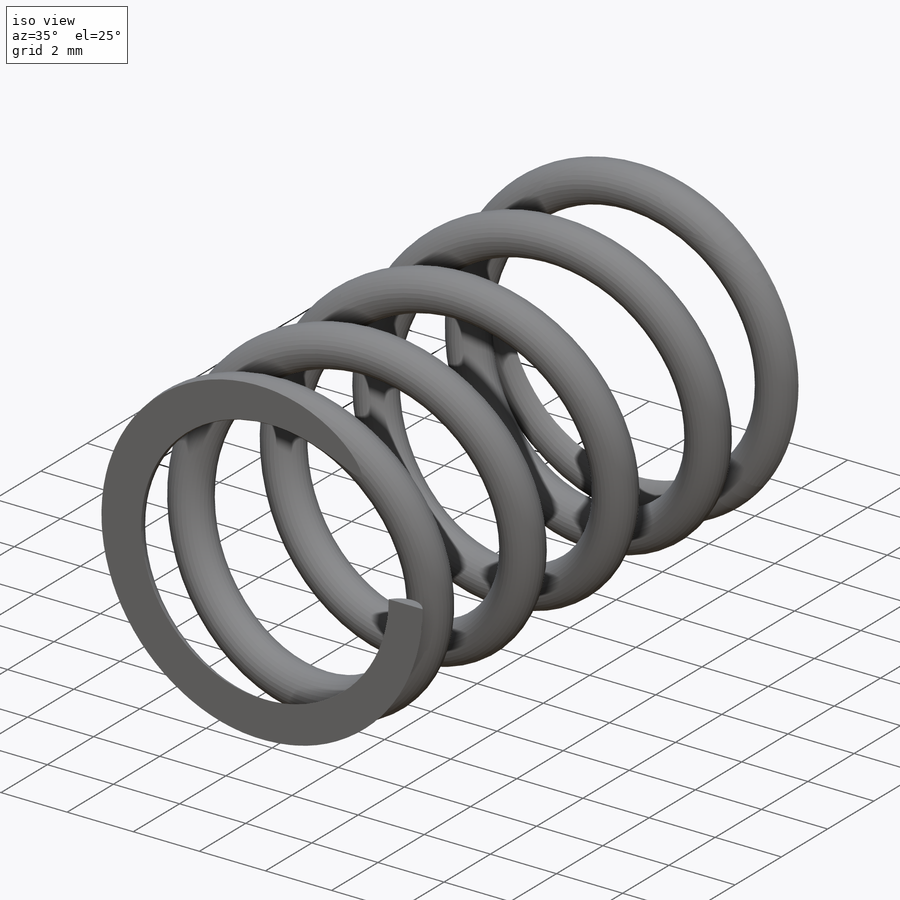
[diagram: iso view]
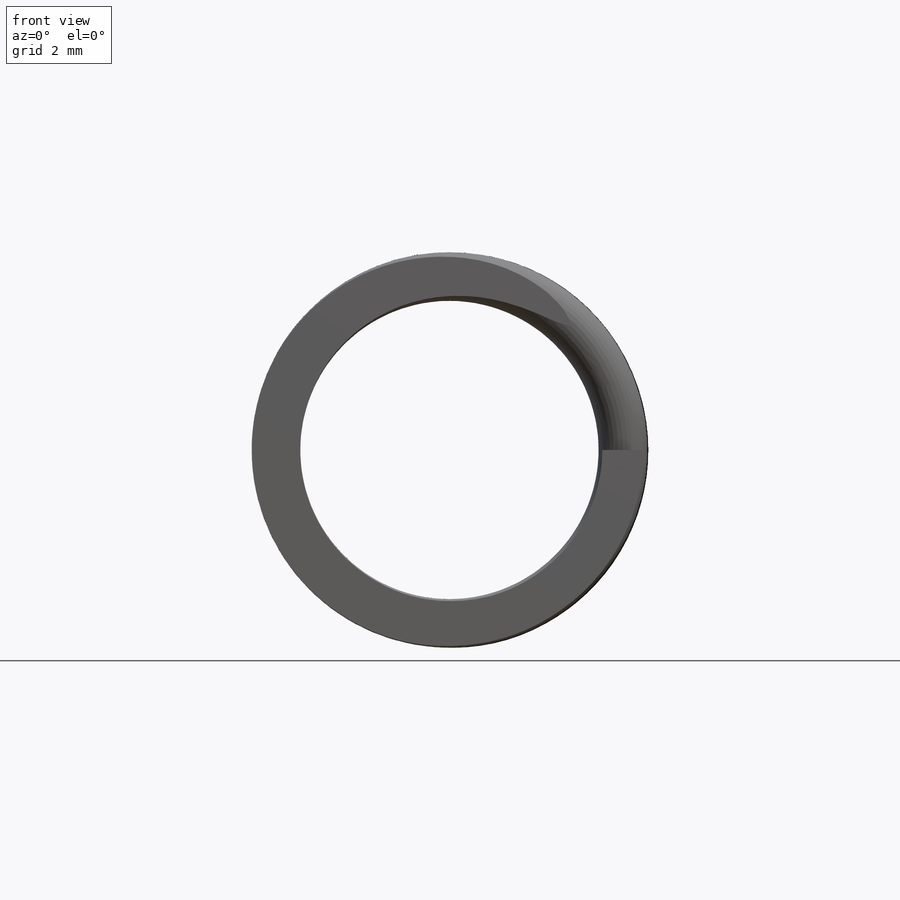
[diagram: front view]
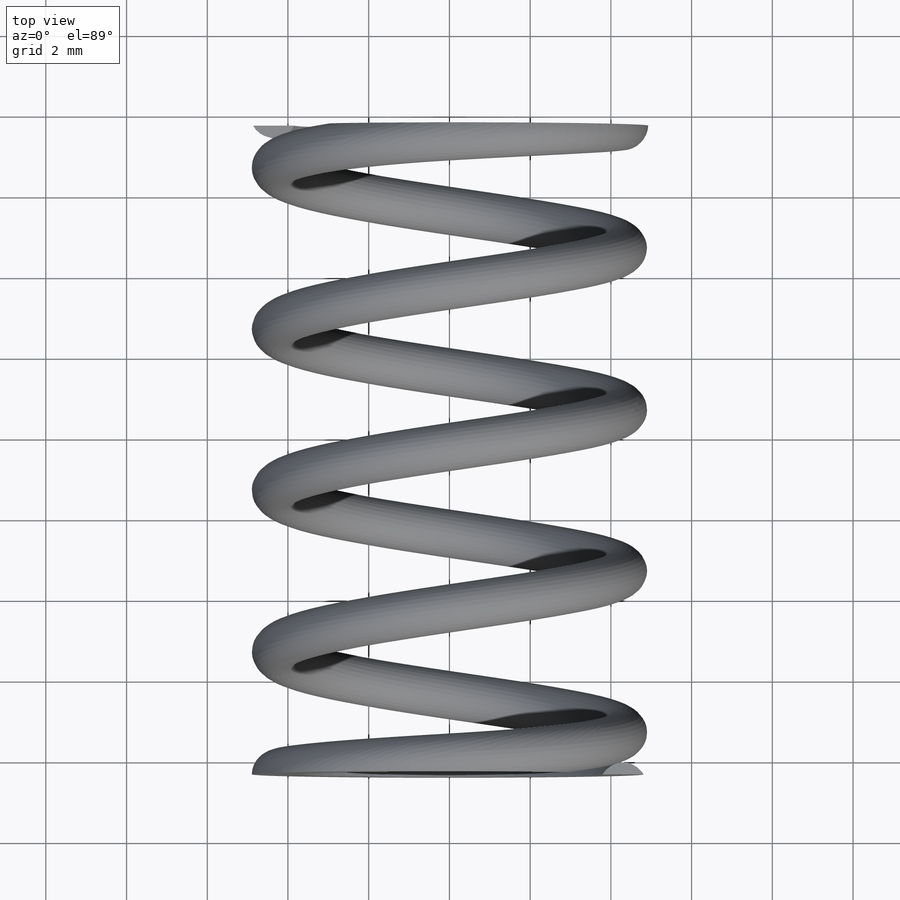
[diagram: top view]
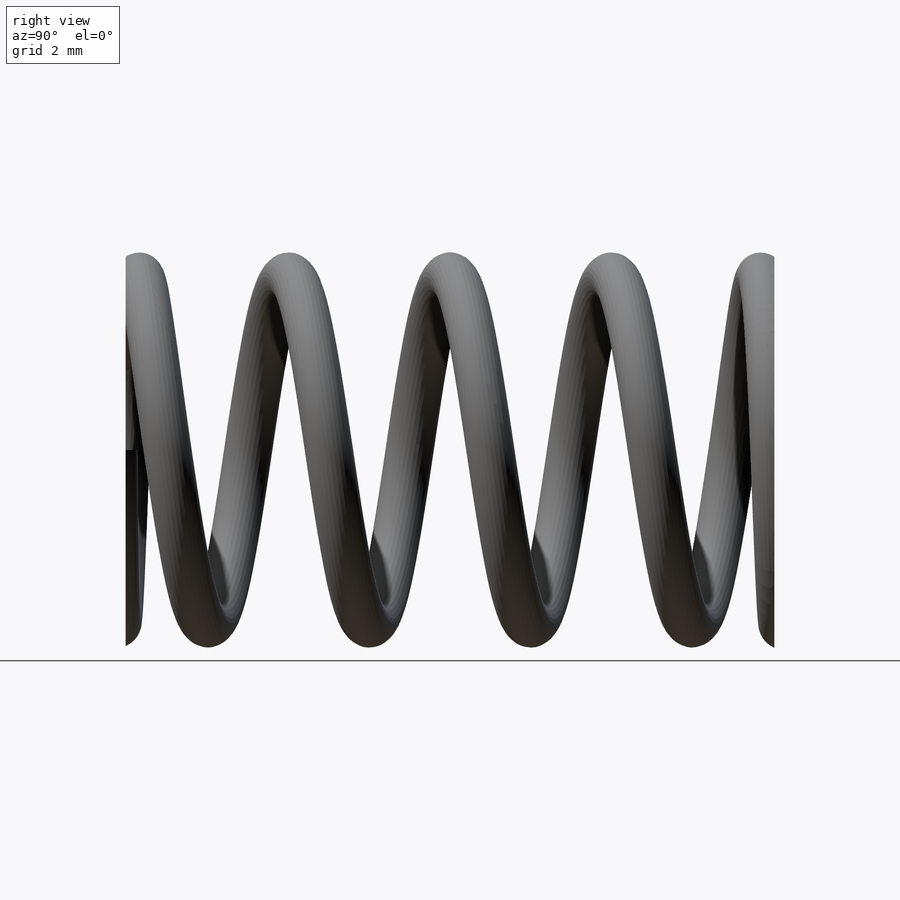
[diagram: right view]
SOLIDWORKS PART (.sldprt)
format: sldprt  version: not decoded by parser v0  size: 698,880 bytes
history: native  units: mm
features: plane x5, sketch x5, material x1, helix x1, sweep x1 (+8 scaffold rows collapsed)
feature tree (21):
  scaffold x8  (default folders/planes/origin — collapsed)
  material  "Stainless DIN 1.4310 (X10CrNi18-8)"
  plane  "Přední rovina"
  plane  "Horní rovina"
  plane  "Pravá rovina"
  sketch  "Sketch3"  dims[D1=8.7mm]
  helix  "Helix/Spiral2"  Pitch=0.6375mm
  sketch  "Sketch7"  dims[D1=1.2mm]
  sweep  "Sweep3"
  sketch  "Sketch8"  dims[D1=0.3mm]
  sketch  "Sketch9"  dims[D1=0.3mm]
  plane  "Plane5"
  plane  "Plane6"
  sketch  "Sketch12"  dims[D1=0.0mm]
decode coverage: 6 of 7 modeling features carry decoded parameters
note: suppression state not decoded; provenance and decode notes live in map.json
